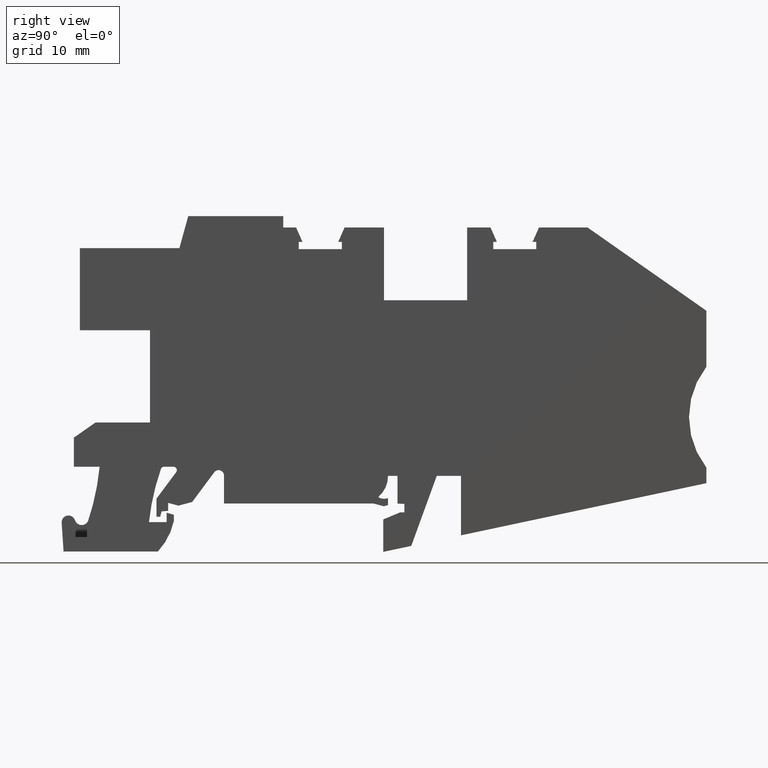
[diagram: clean part render]
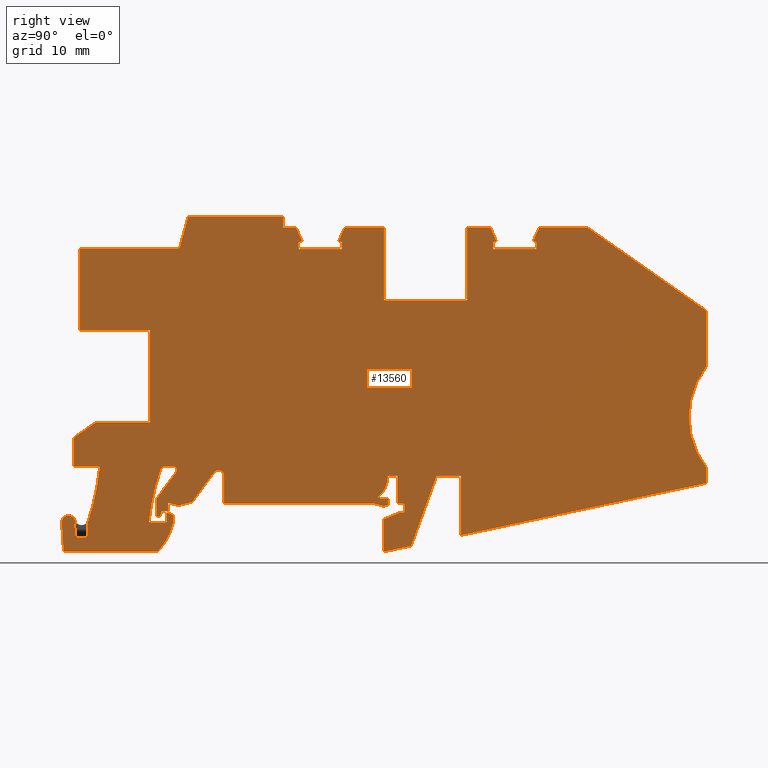
[diagram: same view with one face highlighted and labeled with its STEP entity id]
A machine part, right view. The second image highlights one B-rep face of the part: STEP entity #13560.
In plain terms, the highlighted planar face has unit normal (1, -0, -0).
Its self-contained STEP definition (entity closure, byte-faithful):
#6830=CARTESIAN_POINT('',(58.1696952865842,10.1872776855936,
32.2500000042363));
#6840=DIRECTION('',(0.,0.,1.));
#6850=DIRECTION('',(1.,0.,0.));
#6860=AXIS2_PLACEMENT_3D('',#6830,#6840,#6850);
#6870=PLANE('',#6860);
#6880=CARTESIAN_POINT('',(58.1696952865842,3.90328800000001,
32.2500000042363));
#6890=DIRECTION('',(-1.,0.,0.));
#6900=VECTOR('',#6890,1.);
#6910=LINE('',#6880,#6900);
#6920=CARTESIAN_POINT('',(47.6846115,3.90328800000001,32.2500000042363))
;
#6930=VERTEX_POINT('',#6920);
#6940=CARTESIAN_POINT('',(46.2844147890591,3.90328800000001,
32.2500000042363));
#6950=VERTEX_POINT('',#6940);
#6960=EDGE_CURVE('',#6930,#6950,#6910,.T.);
#6970=ORIENTED_EDGE('',*,*,#6960,.F.);
#6980=CARTESIAN_POINT('',(42.284628444573,3.86367688499011,
32.2500000042363));
#6990=DIRECTION('',(0.,0.,1.));
#7000=DIRECTION('',(1.,0.,0.));
#7010=AXIS2_PLACEMENT_3D('',#6980,#6990,#7000);
#7020=CIRCLE('',#7010,3.99998248020792);
#7030=CARTESIAN_POINT('',(44.8373970532474,0.784191169397863,
32.2500000042363));
#7040=VERTEX_POINT('',#7030);
#7050=EDGE_CURVE('',#7040,#6950,#7020,.T.);
#7060=ORIENTED_EDGE('',*,*,#7050,.T.);
#7070=CARTESIAN_POINT('',(45.6808296902514,2.1438677843091,
32.2500000042363));
#7080=DIRECTION('',(0.,0.,1.));
#7090=DIRECTION('',(1.,0.,0.));
#7100=AXIS2_PLACEMENT_3D('',#7070,#7080,#7090);
#7110=CIRCLE('',#7100,1.60003097166898);
#7120=CARTESIAN_POINT('',(45.926036,0.562737500000004,32.2500000042363))
;
#7130=VERTEX_POINT('',#7120);
#7140=EDGE_CURVE('',#7040,#7130,#7110,.T.);
#7150=ORIENTED_EDGE('',*,*,#7140,.F.);
#7160=CARTESIAN_POINT('',(58.1696952865842,2.46161072011337,
32.2500000042363));
#7170=DIRECTION('',(0.988186190163999,0.15325812725321,0.));
#7180=VECTOR('',#7170,1.);
#7190=LINE('',#7160,#7180);
#7200=CARTESIAN_POINT('',(46.2846129999999,0.618349327045419,
32.2500000042363));
#7210=VERTEX_POINT('',#7200);
#7220=EDGE_CURVE('',#7130,#7210,#7190,.T.);
#7230=ORIENTED_EDGE('',*,*,#7220,.F.);
#7240=CARTESIAN_POINT('',(46.284612999999,10.1872776855936,
32.2500000042363));
#7250=DIRECTION('',(9.57183853876458E-14,-1.,0.));
#7260=VECTOR('',#7250,1.);
#7270=LINE('',#7240,#7260);
#7280=CARTESIAN_POINT('',(46.284613,-0.384872310968779,32.2500000042363)
);
#7290=VERTEX_POINT('',#7280);
#7300=EDGE_CURVE('',#7210,#7290,#7270,.T.);
#7310=ORIENTED_EDGE('',*,*,#7300,.F.);
#7320=CARTESIAN_POINT('',(58.1696952865842,2.79971654623303,
32.2500000042363));
#7330=DIRECTION('',(-0.965926016129664,-0.258818336606734,0.));
#7340=VECTOR('',#7330,1.);
#7350=LINE('',#7320,#7340);
#7360=CARTESIAN_POINT('',(45.6609263078956,-0.551988166136454,
32.2500000042363));
#7370=VERTEX_POINT('',#7360);
#7380=EDGE_CURVE('',#7290,#7370,#7350,.T.);
#7390=ORIENTED_EDGE('',*,*,#7380,.F.);
#7400=CARTESIAN_POINT('',(58.1696952865842,-3.90370617883584,
32.2500000042363));
#7410=DIRECTION('',(-0.965925759367339,0.258819294857686,0.));
#7420=VECTOR('',#7410,1.);
#7430=LINE('',#7400,#7420);
#7440=CARTESIAN_POINT('',(44.1484166291096,-0.146711999999999,
32.2500000042363));
#7450=VERTEX_POINT('',#7440);
#7460=EDGE_CURVE('',#7370,#7450,#7430,.T.);
#7470=ORIENTED_EDGE('',*,*,#7460,.F.);
#7480=CARTESIAN_POINT('',(58.1696952865842,-0.146711999999999,
32.2500000042363));
#7490=DIRECTION('',(-1.,0.,0.));
#7500=VECTOR('',#7490,1.);
#7510=LINE('',#7480,#7500);
#7520=CARTESIAN_POINT('',(22.207764,-0.146711999999999,32.2500000042363)
);
#7530=VERTEX_POINT('',#7520);
#7540=EDGE_CURVE('',#7450,#7530,#7510,.T.);
#7550=ORIENTED_EDGE('',*,*,#7540,.F.);
#7560=CARTESIAN_POINT('',(22.207764,10.1872776855936,32.2500000042363));
#7570=DIRECTION('',(0.,1.,0.));
#7580=VECTOR('',#7570,1.);
#7590=LINE('',#7560,#7580);
#7600=CARTESIAN_POINT('',(22.207764,3.95323254188791,32.2500000042363));
#7610=VERTEX_POINT('',#7600);
#7620=EDGE_CURVE('',#7530,#7610,#7590,.T.);
#7630=ORIENTED_EDGE('',*,*,#7620,.F.);
#7640=CARTESIAN_POINT('',(21.4077639532026,3.9532324723951,
32.2500000042363));
#7650=DIRECTION('',(0.,0.,1.));
#7660=DIRECTION('',(1.,0.,0.));
#7670=AXIS2_PLACEMENT_3D('',#7640,#7650,#7660);
#7680=CIRCLE('',#7670,0.800000046797421);
#7690=CARTESIAN_POINT('',(20.7657805,4.43057649999997,32.2500000042363))
;
#7700=VERTEX_POINT('',#7690);
#7710=EDGE_CURVE('',#7610,#7700,#7680,.T.);
#7720=ORIENTED_EDGE('',*,*,#7710,.F.);
#7730=CARTESIAN_POINT('',(25.0461499181542,10.1872776855936,
32.2500000042363));
#7740=DIRECTION('',(-0.596679917157796,-0.802479330861902,0.));
#7750=VECTOR('',#7740,1.);
#7760=LINE('',#7730,#7750);
#7770=CARTESIAN_POINT('',(17.5284011831151,0.0766005855184222,
32.2500000042363));
#7780=VERTEX_POINT('',#7770);
#7790=EDGE_CURVE('',#7700,#7780,#7760,.T.);
#7800=ORIENTED_EDGE('',*,*,#7790,.F.);
#7810=CARTESIAN_POINT('',(58.1696952865842,10.9664060617175,
32.2500000042363));
#7820=DIRECTION('',(-0.965925805244373,-0.258819123642382,0.));
#7830=VECTOR('',#7820,1.);
#7840=LINE('',#7810,#7830);
#7850=CARTESIAN_POINT('',(15.5095474327506,-0.464349822467931,
32.2500000042363));
#7860=VERTEX_POINT('',#7850);
#7870=EDGE_CURVE('',#7780,#7860,#7840,.T.);
#7880=ORIENTED_EDGE('',*,*,#7870,.F.);
#7890=CARTESIAN_POINT('',(58.1696952865842,-11.8951136898024,
32.2500000042363));
#7900=DIRECTION('',(-0.965925760055042,0.258819292291144,0.));
#7910=VECTOR('',#7900,1.);
#7920=LINE('',#7890,#7910);
#7930=CARTESIAN_POINT('',(13.9846105,-0.0557437845663724,
32.2500000042363));
#7940=VERTEX_POINT('',#7930);
#7950=EDGE_CURVE('',#7860,#7940,#7920,.T.);
#7960=ORIENTED_EDGE('',*,*,#7950,.F.);
#7970=CARTESIAN_POINT('',(13.9846105,10.1872776855936,32.2500000042363))
;
#7980=DIRECTION('',(0.,-1.,0.));
#7990=VECTOR('',#7980,1.);
#8000=LINE('',#7970,#7990);
#8010=CARTESIAN_POINT('',(13.9846105,-1.22997763931675,32.2500000042363)
);
#8020=VERTEX_POINT('',#8010);
#8030=EDGE_CURVE('',#7940,#8020,#8000,.T.);
#8040=ORIENTED_EDGE('',*,*,#8030,.F.);
#8050=CARTESIAN_POINT('',(58.1696952865842,2.63573948568846,
32.2500000042363));
#8060=DIRECTION('',(-0.996194652854533,-0.0871562598098184,0.));
#8070=VECTOR('',#8060,1.);
#8080=LINE('',#8050,#8070);
#8090=CARTESIAN_POINT('',(13.0384359164067,-1.31275768395642,
32.2500000042363));
#8100=VERTEX_POINT('',#8090);
#8110=EDGE_CURVE('',#8020,#8100,#8080,.T.);
#8120=ORIENTED_EDGE('',*,*,#8110,.F.);
#8130=CARTESIAN_POINT('',(16.119868358259,10.1872776855936,
32.2500000042363));
#8140=DIRECTION('',(-0.258819613391209,-0.965925674016394,0.));
#8150=VECTOR('',#8140,1.);
#8160=LINE('',#8130,#8150);
#8170=CARTESIAN_POINT('',(12.8283756301517,-2.09671149999999,
32.2500000042363));
#8180=VERTEX_POINT('',#8170);
#8190=EDGE_CURVE('',#8100,#8180,#8160,.T.);
#8200=ORIENTED_EDGE('',*,*,#8190,.F.);
#8210=CARTESIAN_POINT('',(58.1696952865842,-2.09671149999999,
32.2500000042363));
#8220=DIRECTION('',(-1.,0.,0.));
#8230=VECTOR('',#8220,1.);
#8240=LINE('',#8210,#8230);
#8250=CARTESIAN_POINT('',(12.2846105,-2.09671149999999,32.2500000042363)
);
#8260=VERTEX_POINT('',#8250);
#8270=EDGE_CURVE('',#8180,#8260,#8240,.T.);
#8280=ORIENTED_EDGE('',*,*,#8270,.F.);
#8290=CARTESIAN_POINT('',(12.2846105,10.1872776855936,32.2500000042363))
;
#8300=DIRECTION('',(0.,1.,0.));
#8310=VECTOR('',#8300,1.);
#8320=LINE('',#8290,#8310);
#8330=CARTESIAN_POINT('',(12.2846105,0.565919186143086,32.2500000042363)
);
#8340=VERTEX_POINT('',#8330);
#8350=EDGE_CURVE('',#8260,#8340,#8320,.T.);
#8360=ORIENTED_EDGE('',*,*,#8350,.F.);
#8370=CARTESIAN_POINT('',(19.4385283841735,10.1872776855936,
32.2500000042363));
#8380=DIRECTION('',(0.596679906738885,0.802479338608836,0.));
#8390=VECTOR('',#8380,1.);
#8400=LINE('',#8370,#8390);
#8410=CARTESIAN_POINT('',(15.1762391693043,4.45489254663059,
32.2500000042363));
#8420=VERTEX_POINT('',#8410);
#8430=EDGE_CURVE('',#8340,#8420,#8400,.T.);
#8440=ORIENTED_EDGE('',*,*,#8430,.F.);
#8450=CARTESIAN_POINT('',(14.7749994999999,4.7532325,32.2500000042363));
#8460=DIRECTION('',(0.,0.,1.));
#8470=DIRECTION('',(1.,0.,0.));
#8480=AXIS2_PLACEMENT_3D('',#8450,#8460,#8470);
#8490=CIRCLE('',#8480,0.49999999999998);
#8500=CARTESIAN_POINT('',(14.7749994999999,5.2532325,32.2500000042363));
#8510=VERTEX_POINT('',#8500);
#8520=EDGE_CURVE('',#8420,#8510,#8490,.T.);
#8530=ORIENTED_EDGE('',*,*,#8520,.F.);
#8540=CARTESIAN_POINT('',(58.1696952865842,5.2532325,32.2500000042363));
#8550=DIRECTION('',(-1.,0.,0.));
#8560=VECTOR('',#8550,1.);
#8570=LINE('',#8540,#8560);
#8580=CARTESIAN_POINT('',(13.4041565,5.2532325,32.2500000042363));
#8590=VERTEX_POINT('',#8580);
#8600=EDGE_CURVE('',#8510,#8590,#8570,.T.);
#8610=ORIENTED_EDGE('',*,*,#8600,.F.);
#8620=CARTESIAN_POINT('',(13.4041565,4.7532325,32.2500000042363));
#8630=DIRECTION('',(0.,0.,1.));
#8640=DIRECTION('',(1.,0.,0.));
#8650=AXIS2_PLACEMENT_3D('',#8620,#8630,#8640);
#8660=CIRCLE('',#8650,0.5);
#8670=CARTESIAN_POINT('',(12.9320284023724,4.9178382697364,
32.2500000042363));
#8680=VERTEX_POINT('',#8670);
#8690=EDGE_CURVE('',#8590,#8680,#8660,.T.);
#8700=ORIENTED_EDGE('',*,*,#8690,.F.);
#8710=CARTESIAN_POINT('',(45.9810116417391,-6.60457133150589,
32.2500000042363));
#8720=DIRECTION('',(0.,0.,1.));
#8730=DIRECTION('',(1.,0.,0.));
#8740=AXIS2_PLACEMENT_3D('',#8710,#8720,#8730);
#8750=CIRCLE('',#8740,35.0000173739206);
#8760=CARTESIAN_POINT('',(11.1790183343742,-2.88671199999915,
32.2500000042363));
#8770=VERTEX_POINT('',#8760);
#8780=EDGE_CURVE('',#8680,#8770,#8750,.T.);
#8790=ORIENTED_EDGE('',*,*,#8780,.F.);
#8800=CARTESIAN_POINT('',(58.1696952865842,-2.88671200002526,
32.2500000042363));
#8810=DIRECTION('',(1.,-5.55516835002598E-13,0.));
#8820=VECTOR('',#8810,1.);
#8830=LINE('',#8800,#8820);
#8840=CARTESIAN_POINT('',(13.781469,-2.8867120000006,32.2500000042363));
#8850=VERTEX_POINT('',#8840);
#8860=EDGE_CURVE('',#8770,#8850,#8830,.T.);
#8870=ORIENTED_EDGE('',*,*,#8860,.F.);
#8880=CARTESIAN_POINT('',(13.781469,10.1872776855936,32.2500000042363));
#8890=DIRECTION('',(0.,1.,0.));
#8900=VECTOR('',#8890,1.);
#8910=LINE('',#8880,#8900);
#8920=CARTESIAN_POINT('',(13.781469,-1.49460981917433,32.2500000042363))
;
#8930=VERTEX_POINT('',#8920);
#8940=EDGE_CURVE('',#8850,#8930,#8910,.T.);
#8950=ORIENTED_EDGE('',*,*,#8940,.F.);
#8960=CARTESIAN_POINT('',(58.1696952865842,-14.683696414002,
32.2500000042363));
#8970=DIRECTION('',(0.958580073969649,-0.284823176353931,0.));
#8980=VECTOR('',#8970,1.);
#8990=LINE('',#8960,#8980);
#9000=CARTESIAN_POINT('',(14.831469,-1.80659662475557,32.2500000042363))
;
#9010=VERTEX_POINT('',#9000);
#9020=EDGE_CURVE('',#8930,#9010,#8990,.T.);
#9030=ORIENTED_EDGE('',*,*,#9020,.F.);
#9040=CARTESIAN_POINT('',(14.831469,10.1872776855936,32.2500000042363));
#9050=DIRECTION('',(0.,-1.,0.));
#9060=VECTOR('',#9050,1.);
#9070=LINE('',#9040,#9060);
#9080=CARTESIAN_POINT('',(14.831469,-2.75291281382074,32.2500000042363))
;
#9090=VERTEX_POINT('',#9080);
#9100=EDGE_CURVE('',#9010,#9090,#9070,.T.);
#9110=ORIENTED_EDGE('',*,*,#9100,.F.);
#9120=CARTESIAN_POINT('',(5.5552967299102,-0.703028799549108,
32.2500000042363));
#9130=DIRECTION('',(0.,0.,1.));
#9140=DIRECTION('',(1.,0.,0.));
#9150=AXIS2_PLACEMENT_3D('',#9120,#9130,#9140);
#9160=CIRCLE('',#9150,9.49996823449158);
#9170=CARTESIAN_POINT('',(12.4893774150863,-7.1967119999999,
32.2500000042363));
#9180=VERTEX_POINT('',#9170);
#9190=EDGE_CURVE('',#9180,#9090,#9160,.T.);
#9200=ORIENTED_EDGE('',*,*,#9190,.T.);
#9210=CARTESIAN_POINT('',(58.1696952865842,-7.1967119999999,
32.2500000042363));
#9220=DIRECTION('',(-1.,0.,0.));
#9230=VECTOR('',#9220,1.);
#9240=LINE('',#9210,#9230);
#9250=CARTESIAN_POINT('',(-1.3624935770554,-7.1967119999999,
32.2500000042363));
#9260=VERTEX_POINT('',#9250);
#9270=EDGE_CURVE('',#9180,#9260,#9240,.T.);
#9280=ORIENTED_EDGE('',*,*,#9270,.F.);
#9290=CARTESIAN_POINT('',(-2.51012711081959,10.1872776855936,
32.2500000042363));
#9300=DIRECTION('',(-0.0658733057653179,0.997827994990895,0.));
#9310=VECTOR('',#9300,1.);
#9320=LINE('',#9290,#9310);
#9330=CARTESIAN_POINT('',(-1.64111574056238,-2.97623183546276,
32.2500000042363));
#9340=VERTEX_POINT('',#9330);
#9350=EDGE_CURVE('',#9260,#9340,#9320,.T.);
#9360=ORIENTED_EDGE('',*,*,#9350,.F.);
#9370=CARTESIAN_POINT('',(-0.643287746657208,-2.91035851325113,
32.2500000042363));
#9380=DIRECTION('',(0.,0.,1.));
#9390=DIRECTION('',(1.,9.43586669642622E-37,0.));
#9400=AXIS2_PLACEMENT_3D('',#9370,#9380,#9390);
#9410=CIRCLE('',#9400,1.00000000000001);
#9420=CARTESIAN_POINT('',(0.26768716050745,-3.32282029150017,
32.2500000042363));
#9430=VERTEX_POINT('',#9420);
#9440=EDGE_CURVE('',#9430,#9340,#9410,.T.);
#9450=ORIENTED_EDGE('',*,*,#9440,.T.);
#9460=CARTESIAN_POINT('',(-0.624202602841066,10.1872776855936,
32.2500000042363));
#9470=DIRECTION('',(0.0658731406350013,-0.997828005892239,0.));
#9480=VECTOR('',#9470,1.);
#9490=LINE('',#9460,#9480);
#9500=CARTESIAN_POINT('',(0.387106169335148,-5.13174621025108,
32.2500000042363));
#9510=VERTEX_POINT('',#9500);
#9520=EDGE_CURVE('',#9430,#9510,#9490,.T.);
#9530=ORIENTED_EDGE('',*,*,#9520,.F.);
#9540=CARTESIAN_POINT('',(58.1696952865842,-5.13174621025108,
32.2500000042363));
#9550=DIRECTION('',(-1.,9.88779609411825E-59,0.));
#9560=VECTOR('',#9550,1.);
#9570=LINE('',#9540,#9560);
#9580=CARTESIAN_POINT('',(2.10693949999951,-5.13174621025108,
32.2500000042363));
#9590=VERTEX_POINT('',#9580);
#9600=EDGE_CURVE('',#9590,#9510,#9570,.T.);
#9610=ORIENTED_EDGE('',*,*,#9600,.T.);
#9620=CARTESIAN_POINT('',(2.10693950000309,10.1872776855936,
32.2500000042363));
#9630=DIRECTION('',(-2.33351824897752E-13,-1.,0.));
#9640=VECTOR('',#9630,1.);
#9650=LINE('',#9620,#9640);
#9660=CARTESIAN_POINT('',(2.10693949999999,-3.13126011857456,
32.2500000042363));
#9670=VERTEX_POINT('',#9660);
#9680=EDGE_CURVE('',#9670,#9590,#9650,.T.);
#9690=ORIENTED_EDGE('',*,*,#9680,.T.);
#9700=CARTESIAN_POINT('',(-32.3153398047581,8.77027885567171,
32.2500000042363));
#9710=DIRECTION('',(0.,0.,1.));
#9720=DIRECTION('',(1.,0.,0.));
#9730=AXIS2_PLACEMENT_3D('',#9700,#9710,#9720);
#9740=CIRCLE('',#9730,36.4216960408255);
#9750=CARTESIAN_POINT('',(3.93615282397928,5.25328799999989,
32.2500000042363));
#9760=VERTEX_POINT('',#9750);
#9770=EDGE_CURVE('',#9670,#9760,#9740,.T.);
#9780=ORIENTED_EDGE('',*,*,#9770,.F.);
#9790=CARTESIAN_POINT('',(58.1696952865842,5.25328799998973,
32.2500000042363));
#9800=DIRECTION('',(-1.,1.87566943755863E-13,0.));
#9810=VECTOR('',#9800,1.);
#9820=LINE('',#9790,#9810);
#9830=CARTESIAN_POINT('',(0.153536000000017,5.25328800000061,
32.2500000042363));
#9840=VERTEX_POINT('',#9830);
#9850=EDGE_CURVE('',#9760,#9840,#9820,.T.);
#9860=ORIENTED_EDGE('',*,*,#9850,.F.);
#9870=CARTESIAN_POINT('',(0.153535999999974,10.1872776855936,
32.2500000042363));
#9880=DIRECTION('',(-8.60029598523373E-15,1.,0.));
#9890=VECTOR('',#9880,1.);
#9900=LINE('',#9870,#9890);
#9910=CARTESIAN_POINT('',(0.153535999999981,9.52695443417132,
32.2500000042363));
#9920=VERTEX_POINT('',#9910);
#9930=EDGE_CURVE('',#9840,#9920,#9900,.T.);
#9940=ORIENTED_EDGE('',*,*,#9930,.F.);
#9950=CARTESIAN_POINT('',(58.1696952865842,50.1503019825729,
32.2500000042363));
#9960=DIRECTION('',(0.819152074287921,0.573576393508133,0.));
#9970=VECTOR('',#9960,1.);
#9980=LINE('',#9950,#9970);
#9990=CARTESIAN_POINT('',(3.32874647974343,11.7502605,32.2500000042363))
;
#10000=VERTEX_POINT('',#9990);
#10010=EDGE_CURVE('',#9920,#10000,#9980,.T.);
#10020=ORIENTED_EDGE('',*,*,#10010,.F.);
#10030=CARTESIAN_POINT('',(58.1696952865842,11.750260500001,
32.2500000042363));
#10040=DIRECTION('',(1.,1.78324829047445E-14,0.));
#10050=VECTOR('',#10040,1.);
#10060=LINE('',#10030,#10050);
#10070=CARTESIAN_POINT('',(11.3346104999999,11.7502605000001,
32.2500000042363));
#10080=VERTEX_POINT('',#10070);
#10090=EDGE_CURVE('',#10000,#10080,#10060,.T.);
#10100=ORIENTED_EDGE('',*,*,#10090,.F.);
#10110=CARTESIAN_POINT('',(11.3346104999999,10.1872776855936,
32.2500000042363));
#10120=DIRECTION('',(3.96223084415123E-15,1.,0.));
#10130=VECTOR('',#10120,1.);
#10140=LINE('',#10110,#10130);
#10150=CARTESIAN_POINT('',(11.3346105,25.303288,32.2500000042363));
#10160=VERTEX_POINT('',#10150);
#10170=EDGE_CURVE('',#10080,#10160,#10140,.T.);
#10180=ORIENTED_EDGE('',*,*,#10170,.F.);
#10190=CARTESIAN_POINT('',(58.1696952865842,25.303285610452,
32.2500000042363));
#10200=DIRECTION('',(-0.999999999999999,5.10204688052994E-8,0.));
#10210=VECTOR('',#10200,1.);
#10220=LINE('',#10190,#10210);
#10230=CARTESIAN_POINT('',(1.03461049999998,25.3032885255108,
32.2500000042363));
#10240=VERTEX_POINT('',#10230);
#10250=EDGE_CURVE('',#10160,#10240,#10220,.T.);
#10260=ORIENTED_EDGE('',*,*,#10250,.F.);
#10270=CARTESIAN_POINT('',(1.03461049999869,10.1872776855936,
32.2500000042363));
#10280=DIRECTION('',(8.48793191299524E-14,1.,0.));
#10290=VECTOR('',#10280,1.);
#10300=LINE('',#10270,#10290);
#10310=CARTESIAN_POINT('',(1.034610500001,37.3532884999994,
32.2500000042363));
#10320=VERTEX_POINT('',#10310);
#10330=EDGE_CURVE('',#10240,#10320,#10300,.T.);
#10340=ORIENTED_EDGE('',*,*,#10330,.F.);
#10350=CARTESIAN_POINT('',(58.1696952865842,37.3532885000051,
32.2500000042363));
#10360=DIRECTION('',(1.,1.01415383177819E-13,0.));
#10370=VECTOR('',#10360,1.);
#10380=LINE('',#10350,#10370);
#10390=CARTESIAN_POINT('',(15.6473600067015,37.3532885000009,
32.2500000042363));
#10400=VERTEX_POINT('',#10390);
#10410=EDGE_CURVE('',#10320,#10400,#10380,.T.);
#10420=ORIENTED_EDGE('',*,*,#10410,.F.);
#10430=CARTESIAN_POINT('',(8.13335959182587,10.1872776855936,
32.2500000042363));
#10440=DIRECTION('',(0.266585969629401,0.96381114373966,0.));
#10450=VECTOR('',#10440,1.);
#10460=LINE('',#10430,#10450);
#10470=CARTESIAN_POINT('',(16.9473595609673,42.0532885,32.2500000042363)
);
#10480=VERTEX_POINT('',#10470);
#10490=EDGE_CURVE('',#10400,#10480,#10460,.T.);
#10500=ORIENTED_EDGE('',*,*,#10490,.F.);
#10510=CARTESIAN_POINT('',(58.1696952865842,42.0532885,32.2500000042363)
);
#10520=DIRECTION('',(1.,0.,0.));
#10530=VECTOR('',#10520,1.);
#10540=LINE('',#10510,#10530);
#10550=CARTESIAN_POINT('',(30.8974635,42.0532885,32.2500000042363));
#10560=VERTEX_POINT('',#10550);
#10570=EDGE_CURVE('',#10480,#10560,#10540,.T.);
#10580=ORIENTED_EDGE('',*,*,#10570,.F.);
#10590=CARTESIAN_POINT('',(30.8974635,10.1872776855936,32.2500000042363)
);
#10600=DIRECTION('',(0.,-1.,0.));
#10610=VECTOR('',#10600,1.);
#10620=LINE('',#10590,#10610);
#10630=CARTESIAN_POINT('',(30.8974635,40.386254,32.2500000042363));
#10640=VERTEX_POINT('',#10630);
#10650=EDGE_CURVE('',#10560,#10640,#10620,.T.);
#10660=ORIENTED_EDGE('',*,*,#10650,.F.);
#10670=CARTESIAN_POINT('',(58.1696952865842,40.386254,32.2500000042363))
;
#10680=DIRECTION('',(1.,0.,0.));
#10690=VECTOR('',#10680,1.);
#10700=LINE('',#10670,#10690);
#10710=CARTESIAN_POINT('',(32.7874635744696,40.386254,32.2500000042363))
;
#10720=VERTEX_POINT('',#10710);
#10730=EDGE_CURVE('',#10640,#10720,#10700,.T.);
#10740=ORIENTED_EDGE('',*,*,#10730,.F.);
#10750=CARTESIAN_POINT('',(46.1540458329365,10.1872776855936,
32.2500000042363));
#10760=DIRECTION('',(0.404742611491156,-0.914430652615779,0.));
#10770=VECTOR('',#10760,1.);
#10780=LINE('',#10750,#10770);
#10790=CARTESIAN_POINT('',(33.7191727076899,38.2812535217952,
32.2500000042363));
#10800=VERTEX_POINT('',#10790);
#10810=EDGE_CURVE('',#10720,#10800,#10780,.T.);
#10820=ORIENTED_EDGE('',*,*,#10810,.F.);
#10830=CARTESIAN_POINT('',(58.1696952865842,38.2812087497858,
32.2500000042363));
#10840=DIRECTION('',(-0.999999999998324,1.83112688774807E-6,0.));
#10850=VECTOR('',#10840,1.);
#10860=LINE('',#10830,#10850);
#10870=CARTESIAN_POINT('',(33.1849635,38.2812545,32.2500000042363));
#10880=VERTEX_POINT('',#10870);
#10890=EDGE_CURVE('',#10800,#10880,#10860,.T.);
#10900=ORIENTED_EDGE('',*,*,#10890,.F.);
#10910=CARTESIAN_POINT('',(33.1849635,10.1872776855936,32.2500000042363)
);
#10920=DIRECTION('',(0.,-1.,0.));
#10930=VECTOR('',#10920,1.);
#10940=LINE('',#10910,#10930);
#10950=CARTESIAN_POINT('',(33.1849635,37.2112545,32.2500000042363));
#10960=VERTEX_POINT('',#10950);
#10970=EDGE_CURVE('',#10880,#10960,#10940,.T.);
#10980=ORIENTED_EDGE('',*,*,#10970,.F.);
#10990=CARTESIAN_POINT('',(58.1696952865842,37.2112545,32.2500000042363)
);
#11000=DIRECTION('',(1.,0.,0.));
#11010=VECTOR('',#11000,1.);
#11020=LINE('',#10990,#11010);
#11030=CARTESIAN_POINT('',(39.5099635,37.2112545,32.2500000042363));
#11040=VERTEX_POINT('',#11030);
#11050=EDGE_CURVE('',#10960,#11040,#11020,.T.);
#11060=ORIENTED_EDGE('',*,*,#11050,.F.);
#11070=CARTESIAN_POINT('',(39.5099635,10.1872776855936,32.2500000042363)
);
#11080=DIRECTION('',(0.,1.,0.));
#11090=VECTOR('',#11080,1.);
#11100=LINE('',#11070,#11090);
#11110=CARTESIAN_POINT('',(39.5099635,38.281254,32.2500000042363));
#11120=VERTEX_POINT('',#11110);
#11130=EDGE_CURVE('',#11040,#11120,#11100,.T.);
#11140=ORIENTED_EDGE('',*,*,#11130,.F.);
#11150=CARTESIAN_POINT('',(58.1696952865842,38.281254,32.2500000042363))
;
#11160=DIRECTION('',(-1.,0.,0.));
#11170=VECTOR('',#11160,1.);
#11180=LINE('',#11150,#11170);
#11190=CARTESIAN_POINT('',(38.9757547668639,38.281254,32.2500000042363))
;
#11200=VERTEX_POINT('',#11190);
#11210=EDGE_CURVE('',#11120,#11200,#11180,.T.);
#11220=ORIENTED_EDGE('',*,*,#11210,.F.);
#11230=CARTESIAN_POINT('',(26.5408863219732,10.1872776855936,
32.2500000042363));
#11240=DIRECTION('',(0.404742478345452,0.914430711548328,0.));
#11250=VECTOR('',#11240,1.);
#11260=LINE('',#11230,#11250);
#11270=CARTESIAN_POINT('',(39.90720284648,40.3856655104882,
32.2500000042363));
#11280=VERTEX_POINT('',#11270);
#11290=EDGE_CURVE('',#11200,#11280,#11260,.T.);
#11300=ORIENTED_EDGE('',*,*,#11290,.F.);
#11310=CARTESIAN_POINT('',(58.1696952865842,40.402168818383,
32.2500000042363));
#11320=DIRECTION('',(0.99999959168847,0.000903671895303141,0.));
#11330=VECTOR('',#11320,1.);
#11340=LINE('',#11310,#11330);
#11350=CARTESIAN_POINT('',(45.697221416345,40.3908977896795,
32.2500000042363));
#11360=VERTEX_POINT('',#11350);
#11370=EDGE_CURVE('',#11280,#11360,#11340,.T.);
#11380=ORIENTED_EDGE('',*,*,#11370,.F.);
#11390=CARTESIAN_POINT('',(45.697221416345,10.1872776855936,
32.2500000042363));
#11400=DIRECTION('',(0.,-1.,0.));
#11410=VECTOR('',#11400,1.);
#11420=LINE('',#11390,#11410);
#11430=CARTESIAN_POINT('',(45.697221416345,29.7069577051455,
32.2500000042363));
#11440=VERTEX_POINT('',#11430);
#11450=EDGE_CURVE('',#11360,#11440,#11420,.T.);
#11460=ORIENTED_EDGE('',*,*,#11450,.F.);
#11470=CARTESIAN_POINT('',(58.1696952865842,29.7069577051455,
32.2500000042363));
#11480=DIRECTION('',(1.,0.,0.));
#11490=VECTOR('',#11480,1.);
#11500=LINE('',#11470,#11490);
#11510=CARTESIAN_POINT('',(57.8974635,29.7069577051455,32.2500000042363)
);
#11520=VERTEX_POINT('',#11510);
#11530=EDGE_CURVE('',#11440,#11520,#11500,.T.);
#11540=ORIENTED_EDGE('',*,*,#11530,.F.);
#11550=CARTESIAN_POINT('',(57.8974635,10.1872776855936,32.2500000042363)
);
#11560=DIRECTION('',(0.,1.,0.));
#11570=VECTOR('',#11560,1.);
#11580=LINE('',#11550,#11570);
#11590=CARTESIAN_POINT('',(57.8974635,40.386254,32.2500000042363));
#11600=VERTEX_POINT('',#11590);
#11610=EDGE_CURVE('',#11520,#11600,#11580,.T.);
#11620=ORIENTED_EDGE('',*,*,#11610,.F.);
#11630=CARTESIAN_POINT('',(58.1696952865842,40.386254,32.2500000042363))
;
#11640=DIRECTION('',(1.,0.,0.));
#11650=VECTOR('',#11640,1.);
#11660=LINE('',#11630,#11650);
#11670=CARTESIAN_POINT('',(61.3374635744694,40.386254,32.2500000042363))
;
#11680=VERTEX_POINT('',#11670);
#11690=EDGE_CURVE('',#11600,#11680,#11660,.T.);
#11700=ORIENTED_EDGE('',*,*,#11690,.F.);
#11710=CARTESIAN_POINT('',(74.7040458329399,10.1872776855936,
32.2500000042363));
#11720=DIRECTION('',(0.404742611491246,-0.914430652615739,0.));
#11730=VECTOR('',#11720,1.);
#11740=LINE('',#11710,#11730);
#11750=CARTESIAN_POINT('',(62.2691724960283,38.281254,32.2500000042363))
;
#11760=VERTEX_POINT('',#11750);
#11770=EDGE_CURVE('',#11680,#11760,#11740,.T.);
#11780=ORIENTED_EDGE('',*,*,#11770,.F.);
#11790=CARTESIAN_POINT('',(58.1696952865842,38.281254,32.2500000042363))
;
#11800=DIRECTION('',(-1.,0.,0.));
#11810=VECTOR('',#11800,1.);
#11820=LINE('',#11790,#11810);
#11830=CARTESIAN_POINT('',(61.7349635,38.281254,32.2500000042363));
#11840=VERTEX_POINT('',#11830);
#11850=EDGE_CURVE('',#11760,#11840,#11820,.T.);
#11860=ORIENTED_EDGE('',*,*,#11850,.F.);
#11870=CARTESIAN_POINT('',(61.7349635,10.1872776855936,32.2500000042363)
);
#11880=DIRECTION('',(0.,-1.,0.));
#11890=VECTOR('',#11880,1.);
#11900=LINE('',#11870,#11890);
#11910=CARTESIAN_POINT('',(61.7349635,37.2112545,32.2500000042363));
#11920=VERTEX_POINT('',#11910);
#11930=EDGE_CURVE('',#11840,#11920,#11900,.T.);
#11940=ORIENTED_EDGE('',*,*,#11930,.F.);
#11950=CARTESIAN_POINT('',(58.1696952865842,37.2112547818394,
32.2500000042363));
#11960=DIRECTION('',(0.999999999999997,-7.90513769505028E-8,0.));
#11970=VECTOR('',#11960,1.);
#11980=LINE('',#11950,#11970);
#11990=CARTESIAN_POINT('',(68.059964,37.211254,32.2500000042363));
#12000=VERTEX_POINT('',#11990);
#12010=EDGE_CURVE('',#11920,#12000,#11980,.T.);
#12020=ORIENTED_EDGE('',*,*,#12010,.F.);
#12030=CARTESIAN_POINT('',(68.059964,10.1872776855936,32.2500000042363))
;
#12040=DIRECTION('',(0.,1.,0.));
#12050=VECTOR('',#12040,1.);
#12060=LINE('',#12030,#12050);
#12070=CARTESIAN_POINT('',(68.059964,38.281254,32.2500000042363));
#12080=VERTEX_POINT('',#12070);
#12090=EDGE_CURVE('',#12000,#12080,#12060,.T.);
#12100=ORIENTED_EDGE('',*,*,#12090,.F.);
#12110=CARTESIAN_POINT('',(58.1696952865842,38.281254,32.2500000042363))
;
#12120=DIRECTION('',(-1.,0.,0.));
#12130=VECTOR('',#12120,1.);
#12140=LINE('',#12110,#12130);
#12150=CARTESIAN_POINT('',(67.5257545827498,38.281254,32.2500000042363))
;
#12160=VERTEX_POINT('',#12150);
#12170=EDGE_CURVE('',#12080,#12160,#12140,.T.);
#12180=ORIENTED_EDGE('',*,*,#12170,.F.);
#12190=CARTESIAN_POINT('',(55.0908827117827,10.1872776855936,
32.2500000042363));
#12200=DIRECTION('',(0.404742571592741,0.914430670275497,0.));
#12210=VECTOR('',#12200,1.);
#12220=LINE('',#12190,#12210);
#12230=CARTESIAN_POINT('',(68.4574633944695,40.3862539999994,
32.2500000042363));
#12240=VERTEX_POINT('',#12230);
#12250=EDGE_CURVE('',#12160,#12240,#12220,.T.);
#12260=ORIENTED_EDGE('',*,*,#12250,.F.);
#12270=CARTESIAN_POINT('',(58.1696952865842,40.3862539999982,
32.2500000042363));
#12280=DIRECTION('',(1.,1.07809788639718E-13,0.));
#12290=VECTOR('',#12280,1.);
#12300=LINE('',#12270,#12290);
#12310=CARTESIAN_POINT('',(75.5905153693496,40.3862540000001,
32.2500000042363));
#12320=VERTEX_POINT('',#12310);
#12330=EDGE_CURVE('',#12240,#12320,#12300,.T.);
#12340=ORIENTED_EDGE('',*,*,#12330,.F.);
#12350=CARTESIAN_POINT('',(58.1696952865842,52.5844435864556,
32.2500000042363));
#12360=DIRECTION('',(0.819152043345449,-0.573576437698565,0.));
#12370=VECTOR('',#12360,1.);
#12380=LINE('',#12350,#12370);
#12390=CARTESIAN_POINT('',(93.0346105,28.1717670495063,32.2500000042363)
);
#12400=VERTEX_POINT('',#12390);
#12410=EDGE_CURVE('',#12320,#12400,#12380,.T.);
#12420=ORIENTED_EDGE('',*,*,#12410,.F.);
#12430=CARTESIAN_POINT('',(93.0346104999994,10.1872776855936,
32.2500000042363));
#12440=DIRECTION('',(-3.07537267123128E-14,-1.,0.));
#12450=VECTOR('',#12440,1.);
#12460=LINE('',#12430,#12450);
#12470=CARTESIAN_POINT('',(93.0346104999997,19.9210063554791,
32.2500000042363));
#12480=VERTEX_POINT('',#12470);
#12490=EDGE_CURVE('',#12400,#12480,#12460,.T.);
#12500=ORIENTED_EDGE('',*,*,#12490,.F.);
#12510=CARTESIAN_POINT('',(102.488484637719,12.5301859999999,
32.2500000042363));
#12520=DIRECTION('',(0.,0.,1.));
#12530=DIRECTION('',(1.,0.,0.));
#12540=AXIS2_PLACEMENT_3D('',#12510,#12520,#12530);
#12550=CIRCLE('',#12540,11.9999984057833);
#12560=CARTESIAN_POINT('',(93.0346105,5.1393656445204,32.2500000042363))
;
#12570=VERTEX_POINT('',#12560);
#12580=EDGE_CURVE('',#12480,#12570,#12550,.T.);
#12590=ORIENTED_EDGE('',*,*,#12580,.F.);
#12600=CARTESIAN_POINT('',(93.0346105,10.1872776855936,32.2500000042363)
);
#12610=DIRECTION('',(0.,-1.,0.));
#12620=VECTOR('',#12610,1.);
#12630=LINE('',#12600,#12620);
#12640=CARTESIAN_POINT('',(93.0346105,2.83429147078842,32.2500000042363)
);
#12650=VERTEX_POINT('',#12640);
#12660=EDGE_CURVE('',#12570,#12650,#12630,.T.);
#12670=ORIENTED_EDGE('',*,*,#12660,.F.);
#12680=CARTESIAN_POINT('',(58.1696952865842,-4.57647474486696,
32.2500000042363));
#12690=DIRECTION('',(-0.978147602360037,-0.207911683166944,0.));
#12700=VECTOR('',#12690,1.);
#12710=LINE('',#12680,#12700);
#12720=CARTESIAN_POINT('',(56.9974635,-4.82564029332045,32.2500000042363
));
#12730=VERTEX_POINT('',#12720);
#12740=EDGE_CURVE('',#12650,#12730,#12710,.T.);
#12750=ORIENTED_EDGE('',*,*,#12740,.F.);
#12760=CARTESIAN_POINT('',(56.9974635,10.1872776855936,32.2500000042363)
);
#12770=DIRECTION('',(0.,1.,0.));
#12780=VECTOR('',#12770,1.);
#12790=LINE('',#12760,#12780);
#12800=CARTESIAN_POINT('',(56.9974635,3.90328799999954,32.2500000042363)
);
#12810=VERTEX_POINT('',#12800);
#12820=EDGE_CURVE('',#12730,#12810,#12790,.T.);
#12830=ORIENTED_EDGE('',*,*,#12820,.F.);
#12840=CARTESIAN_POINT('',(58.1696952865842,3.90328799999938,
32.2500000042363));
#12850=DIRECTION('',(-1.,1.41780078155961E-13,0.));
#12860=VECTOR('',#12850,1.);
#12870=LINE('',#12840,#12860);
#12880=CARTESIAN_POINT('',(53.4425186728301,3.90328800000005,
32.2500000042363));
#12890=VERTEX_POINT('',#12880);
#12900=EDGE_CURVE('',#12810,#12890,#12870,.T.);
#12910=ORIENTED_EDGE('',*,*,#12900,.F.);
#12920=CARTESIAN_POINT('',(55.7297037444036,10.1872776855936,
32.2500000042363));
#12930=DIRECTION('',(-0.342020126632761,-0.93969262686163,0.));
#12940=VECTOR('',#12930,1.);
#12950=LINE('',#12920,#12940);
#12960=CARTESIAN_POINT('',(49.7009601175137,-6.37656021249143,
32.2500000042363));
#12970=VERTEX_POINT('',#12960);
#12980=EDGE_CURVE('',#12890,#12970,#12950,.T.);
#12990=ORIENTED_EDGE('',*,*,#12980,.F.);
#13000=CARTESIAN_POINT('',(58.1696952865842,-4.57647529511195,
32.2500000042363));
#13010=DIRECTION('',(-0.978147608058978,-0.207911656355531,0.));
#13020=VECTOR('',#13010,1.);
#13030=LINE('',#13000,#13020);
#13040=CARTESIAN_POINT('',(45.5846109999999,-7.25151707596343,
32.2500000042363));
#13050=VERTEX_POINT('',#13040);
#13060=EDGE_CURVE('',#12970,#13050,#13030,.T.);
#13070=ORIENTED_EDGE('',*,*,#13060,.F.);
#13080=CARTESIAN_POINT('',(45.5846110000037,10.1872776855936,
32.2500000042363));
#13090=DIRECTION('',(2.1678488357321E-13,1.,0.));
#13100=VECTOR('',#13090,1.);
#13110=LINE('',#13080,#13100);
#13120=CARTESIAN_POINT('',(45.5846110000009,-2.48526467284926,
32.2500000042363));
#13130=VERTEX_POINT('',#13120);
#13140=EDGE_CURVE('',#13050,#13130,#13110,.T.);
#13150=ORIENTED_EDGE('',*,*,#13140,.F.);
#13160=CARTESIAN_POINT('',(58.1696952865842,2.72764615679668,
32.2500000042363));
#13170=DIRECTION('',(0.923879578333217,0.382683321741145,0.));
#13180=VECTOR('',#13170,1.);
#13190=LINE('',#13160,#13180);
#13200=CARTESIAN_POINT('',(48.091890853916,-1.44671570441993,
32.2500000042363));
#13210=VERTEX_POINT('',#13200);
#13220=EDGE_CURVE('',#13130,#13210,#13190,.T.);
#13230=ORIENTED_EDGE('',*,*,#13220,.F.);
#13240=CARTESIAN_POINT('',(58.1696952865842,-1.44669499073843,
32.2500000042363));
#13250=DIRECTION('',(0.999999999997888,2.05537641111259E-6,0.));
#13260=VECTOR('',#13250,1.);
#13270=LINE('',#13240,#13260);
#13280=CARTESIAN_POINT('',(48.6846105,-1.44671448615795,32.2500000042363
));
#13290=VERTEX_POINT('',#13280);
#13300=EDGE_CURVE('',#13210,#13290,#13270,.T.);
#13310=ORIENTED_EDGE('',*,*,#13300,.F.);
#13320=CARTESIAN_POINT('',(48.6846105,10.1872776855936,32.2500000042363)
);
#13330=DIRECTION('',(0.,-1.,0.));
#13340=VECTOR('',#13330,1.);
#13350=LINE('',#13320,#13340);
#13360=CARTESIAN_POINT('',(48.6846105000001,-0.206328062770968,
32.2500000042363));
#13370=VERTEX_POINT('',#13360);
#13380=EDGE_CURVE('',#13370,#13290,#13350,.T.);
#13390=ORIENTED_EDGE('',*,*,#13380,.T.);
#13400=CARTESIAN_POINT('',(58.1696952865842,-0.57844227022005,
32.2500000042363));
#13410=DIRECTION('',(0.999231331461384,-0.0392013548989003,0.));
#13420=VECTOR('',#13410,1.);
#13430=LINE('',#13400,#13420);
#13440=CARTESIAN_POINT('',(47.6846115,-0.167096591075403,
32.2500000042363));
#13450=VERTEX_POINT('',#13440);
#13460=EDGE_CURVE('',#13450,#13370,#13430,.T.);
#13470=ORIENTED_EDGE('',*,*,#13460,.T.);
#13480=CARTESIAN_POINT('',(47.6846115,10.1872776855936,32.2500000042363)
);
#13490=DIRECTION('',(0.,1.,0.));
#13500=VECTOR('',#13490,1.);
#13510=LINE('',#13480,#13500);
#13520=EDGE_CURVE('',#13450,#6930,#13510,.T.);
#13530=ORIENTED_EDGE('',*,*,#13520,.F.);
#13540=EDGE_LOOP('',(#13530,#13470,#13390,#13310,#13230,#13150,#13070,
#12990,#12910,#12830,#12750,#12670,#12590,#12500,#12420,#12340,#12260,
#12180,#12100,#12020,#11940,#11860,#11780,#11700,#11620,#11540,#11460,
#11380,#11300,#11220,#11140,#11060,#10980,#10900,#10820,#10740,#10660,
#10580,#10500,#10420,#10340,#10260,#10180,#10100,#10020,#9940,#9860,
#9780,#9690,#9610,#9530,#9450,#9360,#9280,#9200,#9110,#9030,#8950,#8870,
#8790,#8700,#8610,#8530,#8440,#8360,#8280,#8200,#8120,#8040,#7960,#7880,
#7800,#7720,#7630,#7550,#7470,#7390,#7310,#7230,#7150,#7060,#6970));
#13550=FACE_OUTER_BOUND('',#13540,.T.);
#13560=ADVANCED_FACE('',(#13550),#6870,.T.);